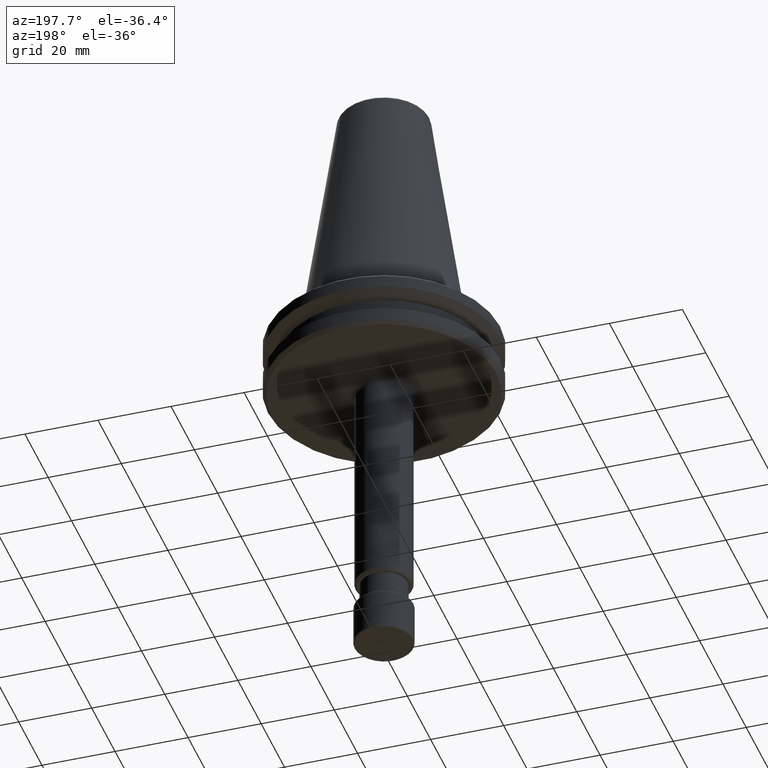
[diagram: clean part render]
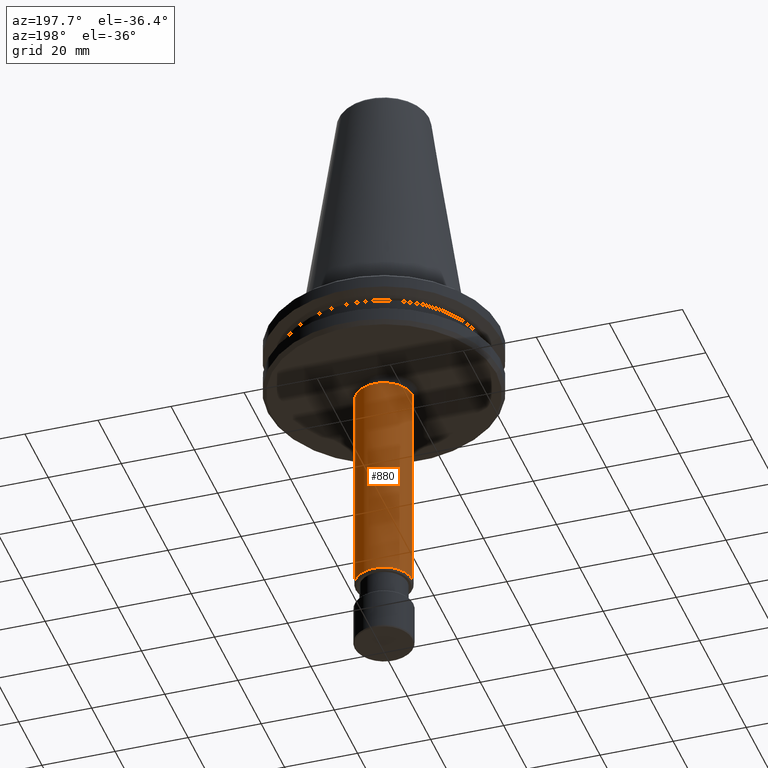
[diagram: same view with one face highlighted and labeled with its STEP entity id]
A machine part, auxiliary view. The second image highlights one B-rep face of the part: STEP entity #880.
In plain terms, the highlighted cylindrical surface (edge-blend (fillet) strip) has radius 7.75 mm, axis along (-0, -0, 1).
Its self-contained STEP definition (entity closure, byte-faithful):
#83 = VERTEX_POINT ( 'NONE', #1024 ) ;
#108 = DIRECTION ( 'NONE',  ( 1.000000000000000000, 0.0000000000000000000, 0.0000000000000000000 ) ) ;
#154 = VERTEX_POINT ( 'NONE', #186 ) ;
#186 = CARTESIAN_POINT ( 'NONE',  ( 7.750000000000034600, 0.0000000000000000000, 12.59999999999989000 ) ) ;
#193 = CARTESIAN_POINT ( 'NONE',  ( 0.0000000000000000000, 0.0000000000000000000, 72.29999999999947100 ) ) ;
#222 = CARTESIAN_POINT ( 'NONE',  ( 0.0000000000000000000, 0.0000000000000000000, 223.7483139439238500 ) ) ;
#227 = CIRCLE ( 'NONE', #493, 7.750000000000034600 ) ;
#267 = DIRECTION ( 'NONE',  ( -0.0000000000000000000, -0.0000000000000000000, 1.000000000000000000 ) ) ;
#303 = ORIENTED_EDGE ( 'NONE', *, *, #874, .T. ) ;
#354 = CARTESIAN_POINT ( 'NONE',  ( 7.750000000000034600, 0.0000000000000000000, 72.29999999999947100 ) ) ;
#358 = CARTESIAN_POINT ( 'NONE',  ( 7.750000000000034600, 0.0000000000000000000, 223.7483139439238500 ) ) ;
#365 = CARTESIAN_POINT ( 'NONE',  ( 0.0000000000000000000, 0.0000000000000000000, 12.59999999999989000 ) ) ;
#399 = CYLINDRICAL_SURFACE ( 'NONE', #1064, 7.750000000000034600 ) ;
#456 = DIRECTION ( 'NONE',  ( -0.0000000000000000000, -0.0000000000000000000, 1.000000000000000000 ) ) ;
#467 = EDGE_CURVE ( 'NONE', #154, #712, #473, .T. ) ;
#473 = LINE ( 'NONE', #358, #503 ) ;
#493 = AXIS2_PLACEMENT_3D ( 'NONE', #365, #267, #1157 ) ;
#503 = VECTOR ( 'NONE', #911, 1000.000000000000000 ) ;
#516 = CARTESIAN_POINT ( 'NONE',  ( -7.750000000000034600, 9.491012693392029200E-016, 223.7483139439238500 ) ) ;
#585 = DIRECTION ( 'NONE',  ( 1.000000000000000000, 0.0000000000000000000, 0.0000000000000000000 ) ) ;
#594 = DIRECTION ( 'NONE',  ( -0.0000000000000000000, -0.0000000000000000000, 1.000000000000000000 ) ) ;
#692 = VECTOR ( 'NONE', #594, 1000.000000000000000 ) ;
#712 = VERTEX_POINT ( 'NONE', #354 ) ;
#738 = FACE_OUTER_BOUND ( 'NONE', #962, .T. ) ;
#750 = AXIS2_PLACEMENT_3D ( 'NONE', #193, #769, #108 ) ;
#769 = DIRECTION ( 'NONE',  ( -0.0000000000000000000, -0.0000000000000000000, 1.000000000000000000 ) ) ;
#829 = VERTEX_POINT ( 'NONE', #1182 ) ;
#860 = ORIENTED_EDGE ( 'NONE', *, *, #467, .F. ) ;
#874 = EDGE_CURVE ( 'NONE', #154, #83, #227, .T. ) ;
#880 = ADVANCED_FACE ( 'NONE', ( #738 ), #399, .T. ) ;
#911 = DIRECTION ( 'NONE',  ( -0.0000000000000000000, -0.0000000000000000000, 1.000000000000000000 ) ) ;
#937 = LINE ( 'NONE', #516, #692 ) ;
#962 = EDGE_LOOP ( 'NONE', ( #303, #1122, #1247, #860 ) ) ;
#1024 = CARTESIAN_POINT ( 'NONE',  ( -7.750000000000034600, 9.491012693392027200E-016, 12.59999999999989000 ) ) ;
#1064 = AXIS2_PLACEMENT_3D ( 'NONE', #222, #456, #585 ) ;
#1122 = ORIENTED_EDGE ( 'NONE', *, *, #1160, .T. ) ;
#1137 = EDGE_CURVE ( 'NONE', #712, #829, #1181, .T. ) ;
#1157 = DIRECTION ( 'NONE',  ( 1.000000000000000000, 0.0000000000000000000, 0.0000000000000000000 ) ) ;
#1160 = EDGE_CURVE ( 'NONE', #83, #829, #937, .T. ) ;
#1181 = CIRCLE ( 'NONE', #750, 7.750000000000034600 ) ;
#1182 = CARTESIAN_POINT ( 'NONE',  ( -7.750000000000034600, 9.491012693392029200E-016, 72.29999999999947100 ) ) ;
#1247 = ORIENTED_EDGE ( 'NONE', *, *, #1137, .F. ) ;